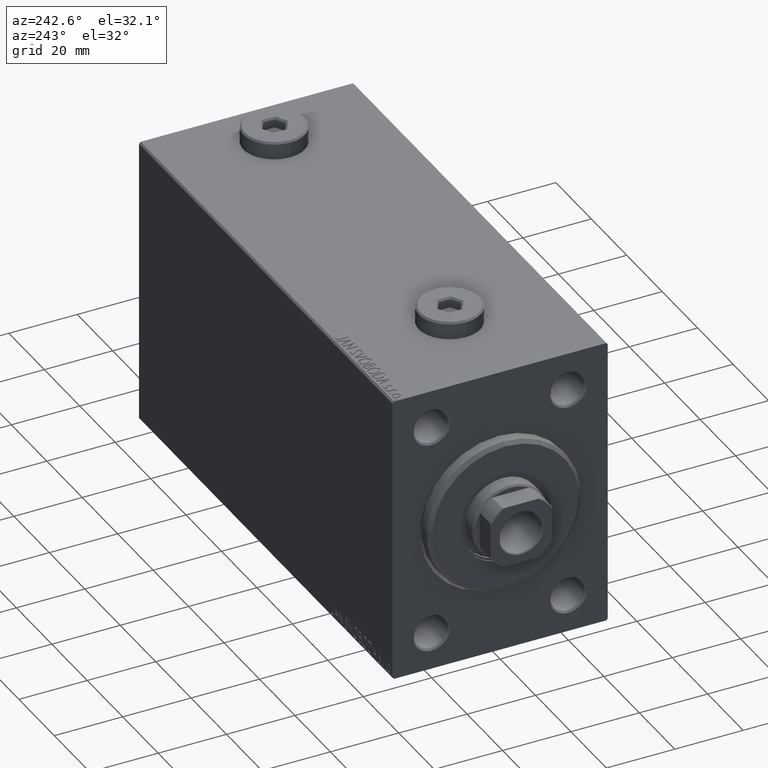
[diagram: clean part render]
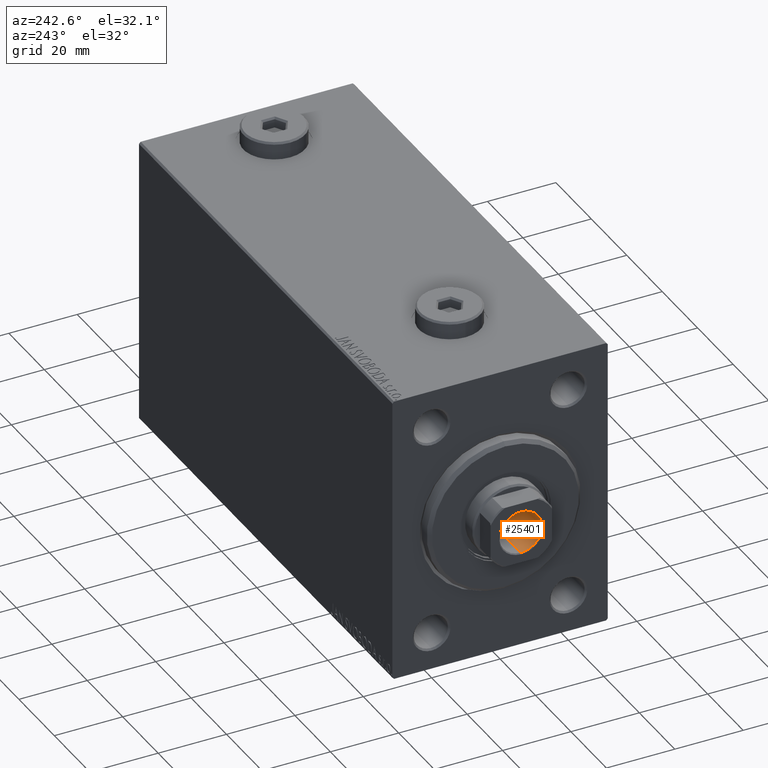
[diagram: same view with one face highlighted and labeled with its STEP entity id]
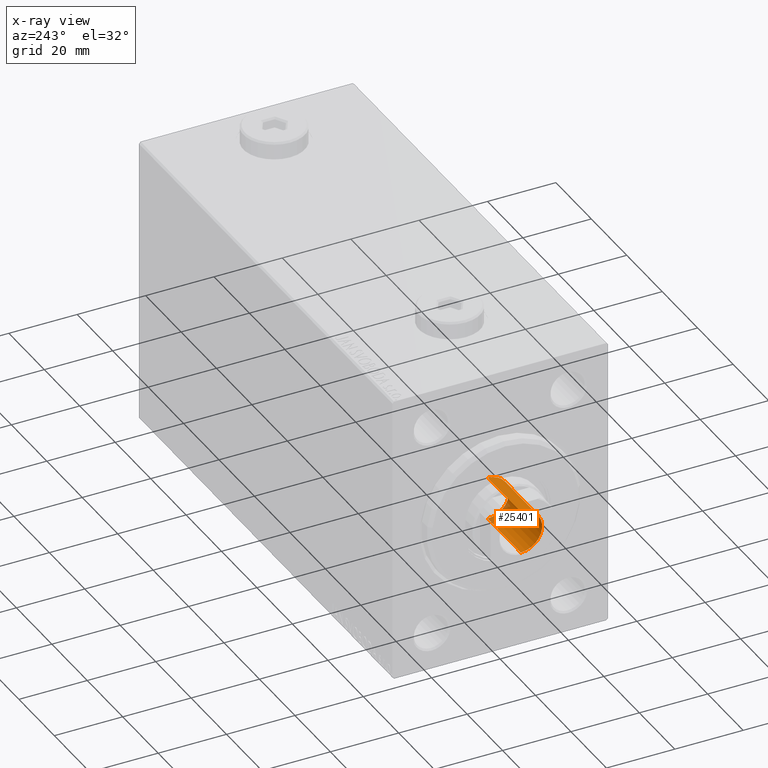
[diagram: x-ray of the same camera — body ghosted, the highlighted face saturated]
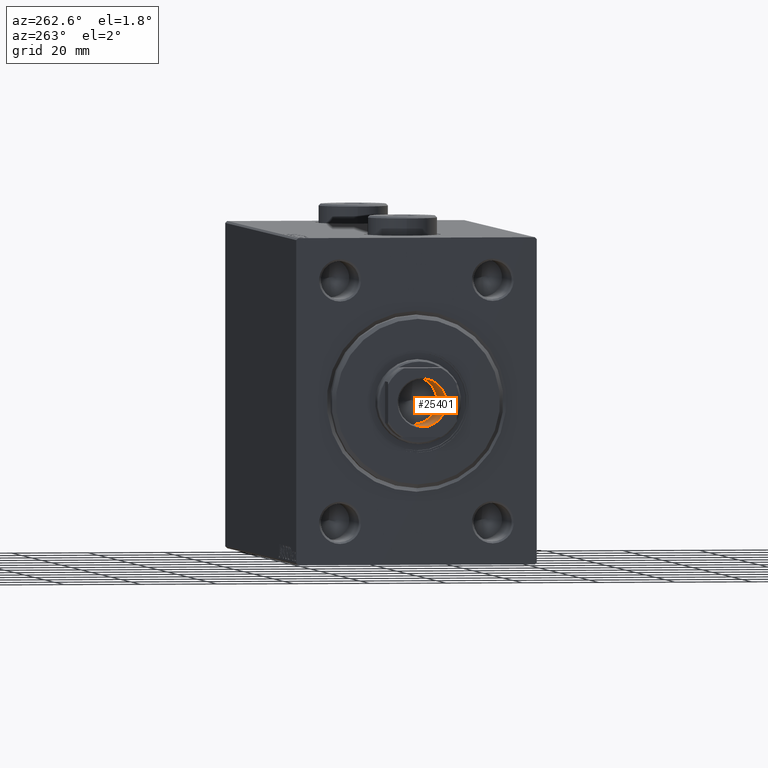
[diagram: same view with one face highlighted and labeled with its STEP entity id]
A machine part, auxiliary view. The second image highlights one B-rep face of the part: STEP entity #25401.
The next image is the same camera in x-ray: the body ghosted, the highlighted face saturated — about 7% of this face is hidden behind the body in this view.
A second angle (auxiliary view) of the same face is appended — the face is thin or edge-on in the first view.
In plain terms, the highlighted cylindrical surface (edge-blend (fillet) strip) has radius 6.25 mm, axis along (-1, 0, 0).
Its self-contained STEP definition (entity closure, byte-faithful):
#318 = CARTESIAN_POINT ( 'NONE',  ( 6.249999999999996447, 0.000000000000000000, 142.6999999999999886 ) ) ;
#923 = ORIENTED_EDGE ( 'NONE', *, *, #7159, .T. ) ;
#1040 = AXIS2_PLACEMENT_3D ( 'NONE', #37988, #40994, #20034 ) ;
#4255 = EDGE_CURVE ( 'NONE', #37865, #18913, #40279, .T. ) ;
#6452 = CARTESIAN_POINT ( 'NONE',  ( -6.249999999999996447, 7.654042494670952676E-16, 142.6999999999999886 ) ) ;
#7049 = DIRECTION ( 'NONE',  ( -0.000000000000000000, -0.000000000000000000, 1.000000000000000000 ) ) ;
#7159 = EDGE_CURVE ( 'NONE', #17120, #18913, #10277, .T. ) ;
#9583 = CARTESIAN_POINT ( 'NONE',  ( 6.249999999999995559, 0.000000000000000000, 124.0000000000000142 ) ) ;
#10277 = CIRCLE ( 'NONE', #43435, 6.249999999999996447 ) ;
#10343 = DIRECTION ( 'NONE',  ( -0.000000000000000000, -0.000000000000000000, 1.000000000000000000 ) ) ;
#12666 = DIRECTION ( 'NONE',  ( 1.000000000000000000, 0.000000000000000000, 0.000000000000000000 ) ) ;
#17120 = VERTEX_POINT ( 'NONE', #6452 ) ;
#18913 = VERTEX_POINT ( 'NONE', #318 ) ;
#20034 = DIRECTION ( 'NONE',  ( 1.000000000000000000, 0.000000000000000000, 0.000000000000000000 ) ) ;
#20502 = LINE ( 'NONE', #28735, #23736 ) ;
#21708 = EDGE_CURVE ( 'NONE', #35044, #37865, #28260, .T. ) ;
#22929 = DIRECTION ( 'NONE',  ( 0.000000000000000000, 0.000000000000000000, 1.000000000000000000 ) ) ;
#23736 = VECTOR ( 'NONE', #10343, 1000.000000000000000 ) ;
#25401 = ADVANCED_FACE ( 'NONE', ( #30187 ), #44249, .F. ) ;
#26595 = CARTESIAN_POINT ( 'NONE',  ( 0.000000000000000000, 0.000000000000000000, 142.6999999999999886 ) ) ;
#26771 = AXIS2_PLACEMENT_3D ( 'NONE', #42075, #7049, #12666 ) ;
#26829 = ORIENTED_EDGE ( 'NONE', *, *, #4255, .F. ) ;
#28260 = CIRCLE ( 'NONE', #1040, 6.249999999999995559 ) ;
#28735 = CARTESIAN_POINT ( 'NONE',  ( -6.249999999999996447, 7.654042494670952676E-16, 143.0000000000000284 ) ) ;
#30187 = FACE_OUTER_BOUND ( 'NONE', #37385, .T. ) ;
#30371 = DIRECTION ( 'NONE',  ( -0.000000000000000000, -0.000000000000000000, 1.000000000000000000 ) ) ;
#34061 = CARTESIAN_POINT ( 'NONE',  ( 6.249999999999996447, 0.000000000000000000, 143.0000000000000284 ) ) ;
#35044 = VERTEX_POINT ( 'NONE', #39456 ) ;
#36751 = DIRECTION ( 'NONE',  ( 1.000000000000000000, 0.000000000000000000, 0.000000000000000000 ) ) ;
#37385 = EDGE_LOOP ( 'NONE', ( #44896, #39434, #923, #26829 ) ) ;
#37865 = VERTEX_POINT ( 'NONE', #9583 ) ;
#37988 = CARTESIAN_POINT ( 'NONE',  ( 0.000000000000000000, 0.000000000000000000, 124.0000000000000142 ) ) ;
#39434 = ORIENTED_EDGE ( 'NONE', *, *, #43033, .T. ) ;
#39456 = CARTESIAN_POINT ( 'NONE',  ( -6.249999999999995559, 7.654042494670950704E-16, 124.0000000000000142 ) ) ;
#40279 = LINE ( 'NONE', #34061, #42597 ) ;
#40994 = DIRECTION ( 'NONE',  ( -0.000000000000000000, -0.000000000000000000, 1.000000000000000000 ) ) ;
#42075 = CARTESIAN_POINT ( 'NONE',  ( 0.000000000000000000, 0.000000000000000000, 143.0000000000000284 ) ) ;
#42597 = VECTOR ( 'NONE', #30371, 1000.000000000000000 ) ;
#43033 = EDGE_CURVE ( 'NONE', #35044, #17120, #20502, .T. ) ;
#43435 = AXIS2_PLACEMENT_3D ( 'NONE', #26595, #22929, #36751 ) ;
#44249 = CYLINDRICAL_SURFACE ( 'NONE', #26771, 6.249999999999996447 ) ;
#44896 = ORIENTED_EDGE ( 'NONE', *, *, #21708, .F. ) ;